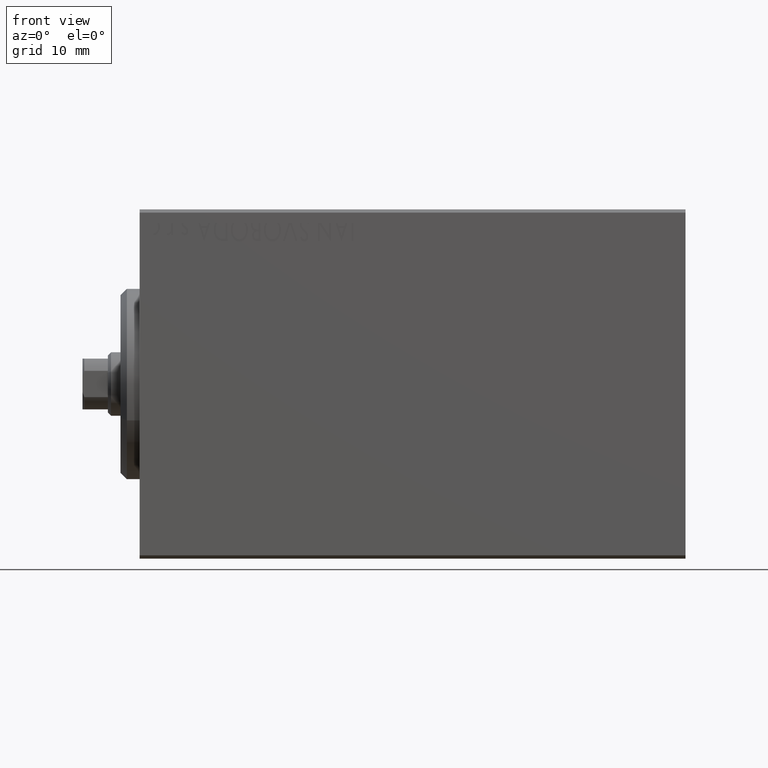
[diagram: clean part render]
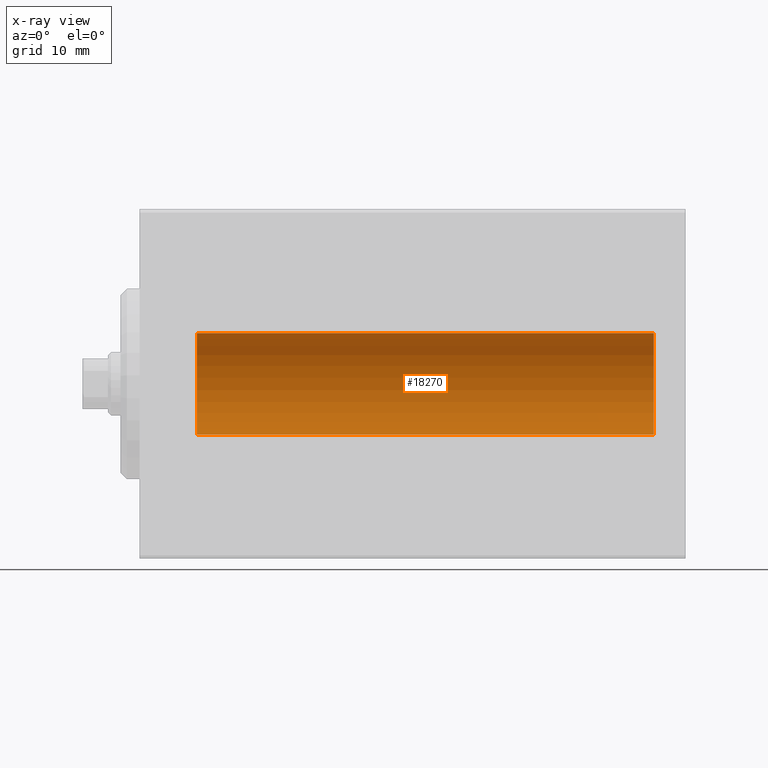
[diagram: x-ray — body ghosted, one internal face saturated and labeled with its STEP entity id]
A machine part, front view, then the same camera in x-ray: the body is ghosted and one INTERNAL B-rep face — a face not visible from any outside direction — is saturated and labeled: STEP entity #18270.
In plain terms, the highlighted cylindrical surface (partial cylindrical patch) has radius 8 mm, axis along (-1, -0, -0).
Its self-contained STEP definition (entity closure, byte-faithful):
#1194 = CARTESIAN_POINT ( 'NONE',  ( 8.999999999999994671, 0.000000000000000000, 0.000000000000000000 ) ) ;
#1803 = CARTESIAN_POINT ( 'NONE',  ( 81.00000000000000000, 0.000000000000000000, 0.000000000000000000 ) ) ;
#1815 = CIRCLE ( 'NONE', #18115, 7.999999999999998224 ) ;
#2156 = CARTESIAN_POINT ( 'NONE',  ( 81.00000000000000000, 9.797174393178823685E-16, -7.999999999999998224 ) ) ;
#5131 = DIRECTION ( 'NONE',  ( 0.000000000000000000, 0.000000000000000000, 1.000000000000000000 ) ) ;
#5569 = CARTESIAN_POINT ( 'NONE',  ( 81.00000000000000000, 0.000000000000000000, 0.000000000000000000 ) ) ;
#5896 = ORIENTED_EDGE ( 'NONE', *, *, #40266, .T. ) ;
#7207 = DIRECTION ( 'NONE',  ( 0.000000000000000000, 0.000000000000000000, 1.000000000000000000 ) ) ;
#8672 = LINE ( 'NONE', #22008, #42842 ) ;
#8842 = AXIS2_PLACEMENT_3D ( 'NONE', #5569, #11793, #28664 ) ;
#11793 = DIRECTION ( 'NONE',  ( -1.000000000000000000, -0.000000000000000000, -0.000000000000000000 ) ) ;
#13457 = ORIENTED_EDGE ( 'NONE', *, *, #15261, .F. ) ;
#15261 = EDGE_CURVE ( 'NONE', #27773, #26461, #38503, .T. ) ;
#15881 = ORIENTED_EDGE ( 'NONE', *, *, #37647, .F. ) ;
#15923 = AXIS2_PLACEMENT_3D ( 'NONE', #1803, #18249, #5131 ) ;
#15963 = CARTESIAN_POINT ( 'NONE',  ( 81.00000000000000000, 0.000000000000000000, 7.999999999999998224 ) ) ;
#17378 = EDGE_CURVE ( 'NONE', #39659, #30473, #8672, .T. ) ;
#18115 = AXIS2_PLACEMENT_3D ( 'NONE', #1194, #37607, #7207 ) ;
#18249 = DIRECTION ( 'NONE',  ( -1.000000000000000000, 0.000000000000000000, 0.000000000000000000 ) ) ;
#18270 = ADVANCED_FACE ( 'NONE', ( #18900 ), #35526, .F. ) ;
#18900 = FACE_OUTER_BOUND ( 'NONE', #34012, .T. ) ;
#19408 = VECTOR ( 'NONE', #21015, 1000.000000000000000 ) ;
#21015 = DIRECTION ( 'NONE',  ( -1.000000000000000000, -0.000000000000000000, -0.000000000000000000 ) ) ;
#22008 = CARTESIAN_POINT ( 'NONE',  ( 81.00000000000000000, 0.000000000000000000, 7.999999999999998224 ) ) ;
#22220 = DIRECTION ( 'NONE',  ( -1.000000000000000000, -0.000000000000000000, -0.000000000000000000 ) ) ;
#25138 = CARTESIAN_POINT ( 'NONE',  ( 8.999999999999994671, 9.797174393178823685E-16, -7.999999999999998224 ) ) ;
#26461 = VERTEX_POINT ( 'NONE', #25138 ) ;
#27773 = VERTEX_POINT ( 'NONE', #2156 ) ;
#28664 = DIRECTION ( 'NONE',  ( 0.000000000000000000, 0.000000000000000000, 1.000000000000000000 ) ) ;
#29281 = CARTESIAN_POINT ( 'NONE',  ( 8.999999999999994671, 0.000000000000000000, 7.999999999999998224 ) ) ;
#30473 = VERTEX_POINT ( 'NONE', #29281 ) ;
#32962 = ORIENTED_EDGE ( 'NONE', *, *, #17378, .T. ) ;
#34012 = EDGE_LOOP ( 'NONE', ( #13457, #15881, #32962, #5896 ) ) ;
#35040 = CIRCLE ( 'NONE', #15923, 7.999999999999998224 ) ;
#35526 = CYLINDRICAL_SURFACE ( 'NONE', #8842, 7.999999999999998224 ) ;
#37607 = DIRECTION ( 'NONE',  ( -1.000000000000000000, 0.000000000000000000, 0.000000000000000000 ) ) ;
#37647 = EDGE_CURVE ( 'NONE', #39659, #27773, #35040, .T. ) ;
#38503 = LINE ( 'NONE', #41611, #19408 ) ;
#39659 = VERTEX_POINT ( 'NONE', #15963 ) ;
#40266 = EDGE_CURVE ( 'NONE', #30473, #26461, #1815, .T. ) ;
#41611 = CARTESIAN_POINT ( 'NONE',  ( 81.00000000000000000, 9.797174393178823685E-16, -7.999999999999998224 ) ) ;
#42842 = VECTOR ( 'NONE', #22220, 1000.000000000000000 ) ;